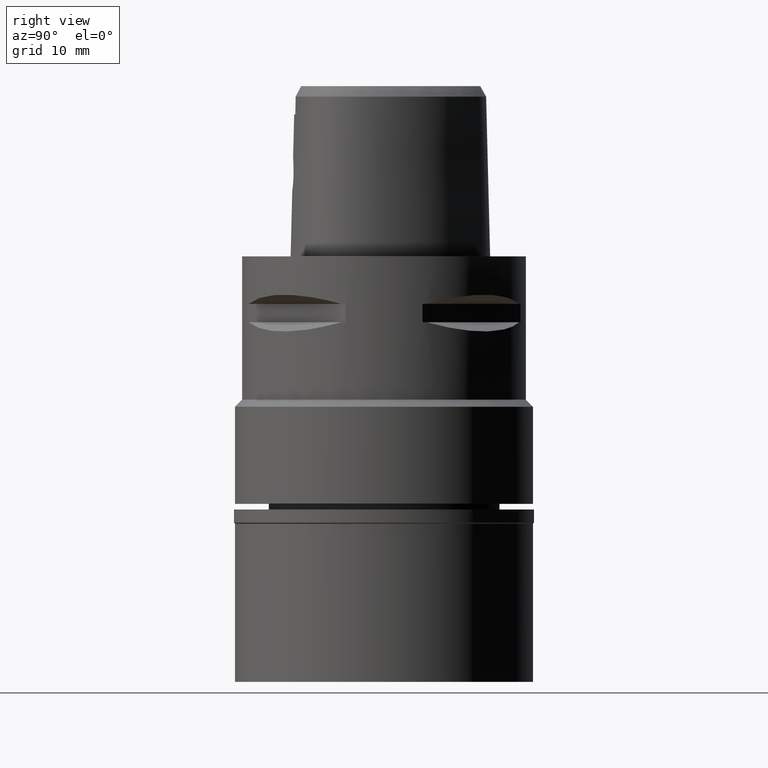
[diagram: clean part render]
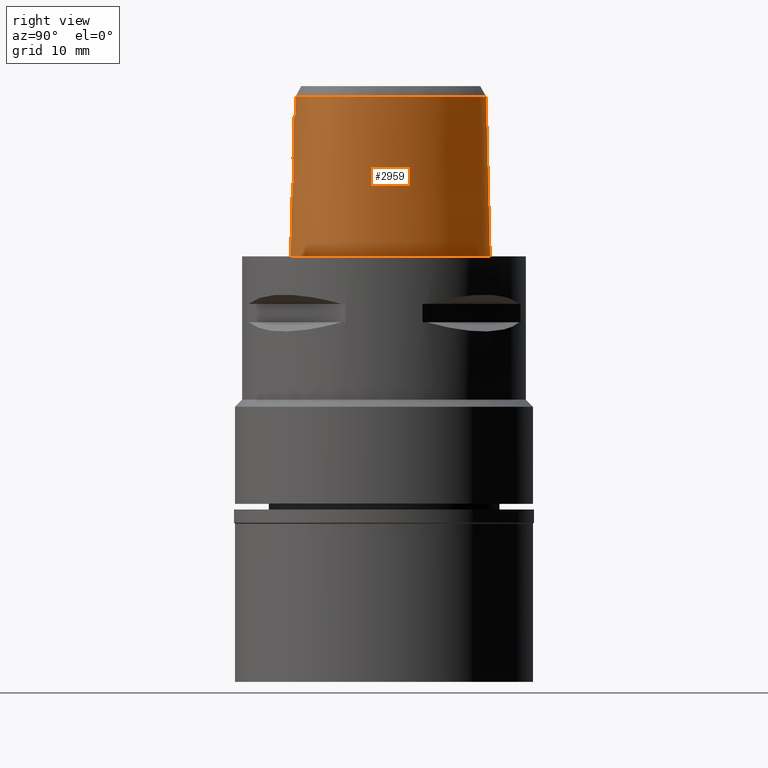
[diagram: same view with one face highlighted and labeled with its STEP entity id]
A machine part, right view. The second image highlights one B-rep face of the part: STEP entity #2959.
In plain terms, the highlighted face is a freeform B-spline surface patch.
Its self-contained STEP definition (entity closure, byte-faithful):
#7 = CARTESIAN_POINT ( 'NONE',  ( 11.17307783342999805, 6.450792882522000227, 15.16398131150999973 ) ) ;
#12 = CARTESIAN_POINT ( 'NONE',  ( 13.44334616193221166, -0.2854647381888774094, 22.52071729251855459 ) ) ;
#13 = CARTESIAN_POINT ( 'NONE',  ( 0.8463630567454494269, -12.91308736094397958, 9.361346884261209311 ) ) ;
#32 = CARTESIAN_POINT ( 'NONE',  ( 9.167104985026000463, -10.63410050911999960, 15.16398131150999973 ) ) ;
#54 = CARTESIAN_POINT ( 'NONE',  ( 13.17288116523999975, -6.685476025928000610, 7.356783012516999953 ) ) ;
#58 = CARTESIAN_POINT ( 'NONE',  ( 3.539803247036112044, 13.67924950645158333, 22.52071729251855459 ) ) ;
#74 = CARTESIAN_POINT ( 'NONE',  ( 12.53434584218000047, -8.180300366804999612, -0.4504152864805999745 ) ) ;
#76 = VECTOR ( 'NONE', #2680, 999.9999999999998863 ) ;
#98 = CARTESIAN_POINT ( 'NONE',  ( 3.702933653767999544, 14.02580468556999982, 7.356783012516999953 ) ) ;
#103 = CARTESIAN_POINT ( 'NONE',  ( 6.021703607729018692, 12.22251596526577089, 22.52071729251855459 ) ) ;
#120 = CARTESIAN_POINT ( 'NONE',  ( -0.4594072135883000563, 14.96036498340999898, -0.4504152864805999745 ) ) ;
#130 = EDGE_CURVE ( 'NONE', #3514, #4128, #686, .T. ) ;
#139 = CARTESIAN_POINT ( 'NONE',  ( -0.2984610428162000617, 14.77461943609000095, 7.356783012516999953 ) ) ;
#140 = CARTESIAN_POINT ( 'NONE',  ( 2.283291726754654860, -12.76615336163048120, 11.21397804785362240 ) ) ;
#168 = CARTESIAN_POINT ( 'NONE',  ( 0.3916487677517999644, 14.99059190172999934, -0.4504152864805999745 ) ) ;
#169 = CARTESIAN_POINT ( 'NONE',  ( 1.636146738088228192, -12.77533106805132768, 13.11651252606782059 ) ) ;
#193 = CARTESIAN_POINT ( 'NONE',  ( 0.2807011221681715019, -12.81802318095999382, 13.79999999999999361 ) ) ;
#214 = CARTESIAN_POINT ( 'NONE',  ( 1.634303316235000025, 14.85806844294999962, -0.4504152864805999745 ) ) ;
#219 = LINE ( 'NONE', #1959, #76 ) ;
#246 = FACE_OUTER_BOUND ( 'NONE', #3727, .T. ) ;
#255 = ORIENTED_EDGE ( 'NONE', *, *, #4236, .T. ) ;
#323 = CARTESIAN_POINT ( 'NONE',  ( 4.010857415567000039, -12.74186238831999951, 7.356783012516999953 ) ) ;
#345 = CARTESIAN_POINT ( 'NONE',  ( -0.5813887770821000167, -13.16870179204000024, -0.4504152864805999745 ) ) ;
#351 = CARTESIAN_POINT ( 'NONE',  ( 0.2902039408553566679, -12.93122636338095788, 9.213445385771416696 ) ) ;
#364 = CARTESIAN_POINT ( 'NONE',  ( 9.263792110822999248, -10.80433669501999994, 7.356783012516999953 ) ) ;
#369 = CARTESIAN_POINT ( 'NONE',  ( 0.5851900644935353890, -12.92362272837751824, 9.274365687024724636 ) ) ;
#387 = CARTESIAN_POINT ( 'NONE',  ( 13.22478982814000048, 2.964135533229000252, -0.4504152864805999745 ) ) ;
#393 = CARTESIAN_POINT ( 'NONE',  ( 8.737913805848126714, 9.598635895952188690, 22.52071729251855459 ) ) ;
#395 = CARTESIAN_POINT ( 'NONE',  ( 1.362992585860884009, -12.88053689248702227, 9.645493491597006752 ) ) ;
#413 = CARTESIAN_POINT ( 'NONE',  ( 13.79295339031999923, -2.621895082742000227, 15.16398131150999973 ) ) ;
#418 = CARTESIAN_POINT ( 'NONE',  ( 13.49620531830307790, -4.288887307215979661, 22.52071729251855459 ) ) ;
#431 = CARTESIAN_POINT ( 'NONE',  ( 11.00320924382000065, 6.352726099267000492, 22.97117961050999924 ) ) ;
#452 = CARTESIAN_POINT ( 'NONE',  ( 11.84499494171000045, -9.036543427711999144, -0.4504152864805999745 ) ) ;
#457 = CARTESIAN_POINT ( 'NONE',  ( 2.568703243657000090, -12.45023755174000080, 22.52071758139999957 ) ) ;
#480 = CARTESIAN_POINT ( 'NONE',  ( 4.736458210706247840, -12.13940339171398008, 22.52071729251855459 ) ) ;
#495 = CARTESIAN_POINT ( 'NONE',  ( -0.3063166190151000445, 14.96966817140000039, -0.4504152864805999745 ) ) ;
#496 = CARTESIAN_POINT ( 'NONE',  ( 1.607887411598816652, -12.85912041386504789, 9.855364509019530317 ) ) ;
#515 = CARTESIAN_POINT ( 'NONE',  ( 2.108316059774772100, -12.79932254745050457, 10.57985993986062923 ) ) ;
#542 = CARTESIAN_POINT ( 'NONE',  ( 0.3611446986978000262, 14.40383100754000090, 22.97117961050999924 ) ) ;
#544 = CARTESIAN_POINT ( 'NONE',  ( 2.093435941452272520, -12.80154818978905595, 10.54659307487395203 ) ) ;
#565 = CARTESIAN_POINT ( 'NONE',  ( 3.618945461097000216, 13.84737968352000159, 15.16398131150999973 ) ) ;
#586 = CARTESIAN_POINT ( 'NONE',  ( 1.617438359910112311, -12.85819787466014930, 9.864768670370724024 ) ) ;
#603 = ORIENTED_EDGE ( 'NONE', *, *, #3016, .T. ) ;
#628 = CARTESIAN_POINT ( 'NONE',  ( -5.004695375703999012E-14, -12.93301545397000041, 9.199999999999999289 ) ) ;
#632 = VERTEX_POINT ( 'NONE', #963 ) ;
#648 = CARTESIAN_POINT ( 'NONE',  ( -0.8566252957487999753, -12.76751126269999936, 15.16398131150999973 ) ) ;
#680 = ORIENTED_EDGE ( 'NONE', *, *, #3995, .T. ) ;
#686 = B_SPLINE_CURVE_WITH_KNOTS ( 'NONE', 3,
 ( #2984, #3386, #1647, #3436 ),
 .UNSPECIFIED., .F., .F.,
 ( 4, 4 ),
 ( 0.0000000000000000000, 1.000000000000000000 ),
 .UNSPECIFIED. ) ;
#715 = CARTESIAN_POINT ( 'NONE',  ( 13.67906226650999812, -4.314970315206999807, 15.16398131150999973 ) ) ;
#719 = CARTESIAN_POINT ( 'NONE',  ( 0.8599890503297806799, -12.91243217640208840, 9.366823301353724318 ) ) ;
#733 = CARTESIAN_POINT ( 'NONE',  ( 6.379661314013999274, 12.67792013684000096, -0.4504152864805999745 ) ) ;
#737 = CARTESIAN_POINT ( 'NONE',  ( 12.68166859856407491, 2.767886240359223038, 22.52071729251855459 ) ) ;
#738 = CARTESIAN_POINT ( 'NONE',  ( 1.107777221386162081, -12.89898952629147999, 9.478752576622724746 ) ) ;
#755 = CARTESIAN_POINT ( 'NONE',  ( 12.37623265583999910, -8.065311717194999730, 7.356783012516999953 ) ) ;
#780 = CARTESIAN_POINT ( 'NONE',  ( 14.06716929078999989, -4.370330522816000318, -0.4504152864805999745 ) ) ;
#799 = CARTESIAN_POINT ( 'NONE',  ( 12.81132623647999935, -7.396622651064999943, 7.356783012516999953 ) ) ;
#822 = CARTESIAN_POINT ( 'NONE',  ( 1.631981573327724533, 14.84698125559329362, -2.272717394054962758E-07 ) ) ;
#840 = CARTESIAN_POINT ( 'NONE',  ( -6.443097018925999211E-11, 14.40001989798000182, 22.52071729252999788 ) ) ;
#849 = CARTESIAN_POINT ( 'NONE',  ( 1.900109215921028660, -12.76256732845289932, 12.79816543668667883 ) ) ;
#870 = CARTESIAN_POINT ( 'NONE',  ( 1.513572624409000200, 14.28153440940000074, 22.97117961050999924 ) ) ;
#871 = CARTESIAN_POINT ( 'NONE',  ( 2.174655026129327151, -12.75097664368956707, 12.25065586503511206 ) ) ;
#895 = CARTESIAN_POINT ( 'NONE',  ( 0.9140504596458254305, -12.80412716134275897, 13.61058950019206293 ) ) ;
#945 = CARTESIAN_POINT ( 'NONE',  ( 1.542743282406445315, -12.86521460690468288, 9.794004530746757808 ) ) ;
#963 = CARTESIAN_POINT ( 'NONE',  ( -1.260417602886999942E-08, -12.66301535847000004, 19.99999996345999875 ) ) ;
#987 = VECTOR ( 'NONE', #3496, 1000.000000000000000 ) ;
#1022 = CARTESIAN_POINT ( 'NONE',  ( 0.0000000000000000000, -12.81802318095999915, 13.79999999999999893 ) ) ;
#1024 = CARTESIAN_POINT ( 'NONE',  ( 1.039641958832000057, -12.80928539657999998, 15.16398131150999973 ) ) ;
#1045 = CARTESIAN_POINT ( 'NONE',  ( -3.141300009387999579E-13, -13.16299999999999848, 3.164320657352000331E-13 ) ) ;
#1092 = CARTESIAN_POINT ( 'NONE',  ( 9.360479236618999721, -10.97457288092000027, -0.4504152864805999745 ) ) ;
#1113 = CARTESIAN_POINT ( 'NONE',  ( 13.18504580930000003, -5.572791057723000208, 22.97117961050999924 ) ) ;
#1138 = CARTESIAN_POINT ( 'NONE',  ( 12.06000628317000078, -7.835334417974999077, 22.97117961050999924 ) ) ;
#1162 = CARTESIAN_POINT ( 'NONE',  ( 10.57640489433000042, -9.688930259358999209, 15.16398131150999973 ) ) ;
#1163 = B_SPLINE_CURVE_WITH_KNOTS ( 'NONE', 3,
 ( #3416, #3085, #1625, #4460, #1228, #2279, #3037, #1911, #4530, #1303, #1953, #3387, #4052, #1603, #1274, #4149, #1977, #3715, #4483, #822, #2622, #1929 ),
 .UNSPECIFIED., .F., .F.,
 ( 4, 1, 1, 1, 1, 1, 1, 1, 1, 1, 1, 1, 1, 1, 1, 1, 1, 1, 1, 4 ),
 ( 0.0000000000000000000, 0.08333333333314001112, 0.1666666666663000063, 0.2083333333328000192, 0.2499999999994000077, 0.2916666666659999962, 0.3124999999992999489, 0.3333333333325000369, 0.3541666666659000207, 0.3749999999990999977, 0.4166666666657000140, 0.4583333333321999992, 0.4999999999987999599, 0.5833333333318999614, 0.6666666666650999939, 0.7499999999983000265, 0.8333333333314000280, 0.9166666666646000605, 0.9583333333311000457, 1.000000000000000000 ),
 .UNSPECIFIED. ) ;
#1180 = CARTESIAN_POINT ( 'NONE',  ( 13.56059769772000045, -5.684126895121000445, 7.356783012516999953 ) ) ;
#1203 = CARTESIAN_POINT ( 'NONE',  ( -0.4238406444181000432, 14.37596225131000161, 22.97117961050999924 ) ) ;
#1204 = CARTESIAN_POINT ( 'NONE',  ( 1.951316193504742280, -12.82105448170039352, 10.28025765297707039 ) ) ;
#1228 = CARTESIAN_POINT ( 'NONE',  ( 9.354901136022304442, -10.96475156745835910, -2.272717394054962758E-07 ) ) ;
#1229 = CARTESIAN_POINT ( 'NONE',  ( 2.129813370590990740, -12.75234797374023721, 12.36828487053672276 ) ) ;
#1252 = CARTESIAN_POINT ( 'NONE',  ( 2.192541761837270009, -12.75060236087973387, 12.19586171827744003 ) ) ;
#1274 = CARTESIAN_POINT ( 'NONE',  ( 13.21414037583564749, 2.960287501941765154, -2.272717394054962758E-07 ) ) ;
#1275 = CARTESIAN_POINT ( 'NONE',  ( 1.684262171804238095, -12.77302273728518323, 13.06656659278451293 ) ) ;
#1298 = EDGE_CURVE ( 'NONE', #1850, #3378, #219, .T. ) ;
#1303 = CARTESIAN_POINT ( 'NONE',  ( 13.34121471886259513, -6.760328908562915018, -2.272717394054962758E-07 ) ) ;
#1304 = CARTESIAN_POINT ( 'NONE',  ( 2.060625410339937513, -12.80630362430889235, 10.47760979850948004 ) ) ;
#1334 = B_SPLINE_CURVE_WITH_KNOTS ( 'NONE', 3,
 ( #3234, #4283, #351, #2477, #369, #3921, #2502, #2135, #13, #719, #1802, #1461, #3962, #738, #2178, #395, #3262, #1832, #945, #4531, #3038, #496, #586, #2025, #1604, #2353, #4098, #1204, #2726, #3438, #1304, #544, #515, #3086, #3063, #2623, #140, #3012, #4484, #3716, #2923, #1954, #3459, #4175, #4461, #1252, #871, #1978, #3817, #2373, #1229, #1501, #4379, #4075, #849, #2648, #1580, #3737, #1626, #1275, #3388, #2303, #169, #4506, #2702, #2674, #2280, #4123, #1930, #3417, #895, #2326, #3367, #3766, #193, #4150 ),
 .UNSPECIFIED., .F., .F.,
 ( 4, 2, 2, 1, 1, 1, 2, 2, 2, 2, 2, 1, 2, 2, 2, 2, 2, 2, 2, 2, 2, 2, 2, 2, 2, 1, 1, 1, 2, 2, 2, 2, 2, 1, 2, 2, 2, 2, 1, 1, 2, 2, 4 ),
 ( 0.0000000000000000000, 0.06249999999999270028, 0.09374999999998900879, 0.1093749999999871630, 0.1171874999999860806, 0.1210937499999854283, 0.1230468749999850953, 0.1249999999999847761, 0.1874999999999740485, 0.2187499999999686917, 0.2343749999999659994, 0.2421874999999646672, 0.2460937499999641953, 0.2499999999999637512, 0.2812499999999624745, 0.3124999999999613087, 0.3437499999999600875, 0.3593749999999594769, 0.3749999999999588662, 0.4374999999999584221, 0.4687499999999579225, 0.4843749999999579781, 0.4999999999999580336, 0.5624999999999583666, 0.5937499999999584777, 0.6093749999999585887, 0.6171874999999590328, 0.6210937499999589217, 0.6230468749999591438, 0.6249999999999592548, 0.6874999999999644729, 0.7187499999999671374, 0.7343749999999683586, 0.7421874999999690248, 0.7460937499999693578, 0.7499999999999696909, 0.8124999999999766853, 0.8437499999999802380, 0.8593749999999820144, 0.8671874999999827915, 0.8710937499999832356, 0.8749999999999835687, 1.000000000000000000 ),
 .UNSPECIFIED. ) ;
#1455 = CARTESIAN_POINT ( 'NONE',  ( 8.879307779120001243, 9.717869240021000721, 15.16398131150999973 ) ) ;
#1461 = CARTESIAN_POINT ( 'NONE',  ( 0.8747345760849615237, -12.91171422237640343, 9.372829819807567020 ) ) ;
#1478 = CARTESIAN_POINT ( 'NONE',  ( 12.21811946951000039, -7.950323067585000736, 15.16398131150999973 ) ) ;
#1479 = ORIENTED_EDGE ( 'NONE', *, *, #1298, .F. ) ;
#1485 = CARTESIAN_POINT ( 'NONE',  ( 0.8728598500693373063, -12.66303358566608495, 20.00000039696025311 ) ) ;
#1496 = ORIENTED_EDGE ( 'NONE', *, *, #3798, .F. ) ;
#1497 = CARTESIAN_POINT ( 'NONE',  ( 12.81560179714000114, -6.526604606469000203, 22.97117961050999924 ) ) ;
#1500 = CARTESIAN_POINT ( 'NONE',  ( 12.82590900890542152, -6.531187914406805461, 22.52071729251855459 ) ) ;
#1501 = CARTESIAN_POINT ( 'NONE',  ( 2.127531297605242067, -12.75242672595457094, 12.37385599951359794 ) ) ;
#1517 = CARTESIAN_POINT ( 'NONE',  ( 13.04019922838999967, 2.897436290594999964, 7.356783012516999953 ) ) ;
#1540 = CARTESIAN_POINT ( 'NONE',  ( 9.070417859229999991, -10.46386432322000104, 22.97117961050999924 ) ) ;
#1556 = CARTESIAN_POINT ( 'NONE',  ( -0.4356961674748000002, 14.57076316200999955, 15.16398131150999973 ) ) ;
#1578 = CARTESIAN_POINT ( 'NONE',  ( 1.553816188351000216, 14.47371242058999918, 15.16398131150999973 ) ) ;
#1580 = CARTESIAN_POINT ( 'NONE',  ( 1.777128131587683679, -12.76853727841398012, 12.96066480105604590 ) ) ;
#1603 = CARTESIAN_POINT ( 'NONE',  ( 14.00068088579136294, -0.1863062489993862481, -2.272717394054962758E-07 ) ) ;
#1604 = CARTESIAN_POINT ( 'NONE',  ( 1.727977423403882717, -12.84715031218464176, 9.980214359577360028 ) ) ;
#1625 = CARTESIAN_POINT ( 'NONE',  ( 4.043386008733997450, -12.92392500562347735, -2.272717394054962758E-07 ) ) ;
#1626 = CARTESIAN_POINT ( 'NONE',  ( 1.706514786401625461, -12.77195056588762334, 13.04216762706386668 ) ) ;
#1638 = EDGE_CURVE ( 'NONE', #2133, #2889, #4609, .T. ) ;
#1647 = CARTESIAN_POINT ( 'NONE',  ( 2.580559080356283008, -12.46988838676011468, 21.68047841357000038 ) ) ;
#1649 = CARTESIAN_POINT ( 'NONE',  ( 0.3814807447338000590, 14.79500493699999808, 7.356783012516999953 ) ) ;
#1683 = CARTESIAN_POINT ( 'NONE',  ( -0.8641029042386000336, -12.96254436573999946, 7.356783012516999953 ) ) ;
#1796 = CARTESIAN_POINT ( 'NONE',  ( 9.179411191957001392, 9.970937547325998906, -0.4504152864805999745 ) ) ;
#1802 = CARTESIAN_POINT ( 'NONE',  ( 0.8690674297323659481, -12.91199189238994016, 9.370505741516797826 ) ) ;
#1811 = CARTESIAN_POINT ( 'NONE',  ( 1.519331039290999918E-10, 14.96299999995999919, 3.170611921159000011E-13 ) ) ;
#1825 = CARTESIAN_POINT ( 'NONE',  ( 6.014684081915000036, 12.21358552102000061, 22.97117961050999924 ) ) ;
#1831 = CARTESIAN_POINT ( 'NONE',  ( 11.42690036411302756, -8.639965949823853464, 22.52071729251855459 ) ) ;
#1832 = CARTESIAN_POINT ( 'NONE',  ( 1.493711519928027975, -12.86960986600945134, 9.750504243696049400 ) ) ;
#1846 = CARTESIAN_POINT ( 'NONE',  ( 12.67101802888999984, 2.764037805325999742, 22.97117961050999924 ) ) ;
#1850 = VERTEX_POINT ( 'NONE', #840 ) ;
#1851 = CARTESIAN_POINT ( 'NONE',  ( 13.19588016803566788, -5.576003003767476152, 22.52071729251855459 ) ) ;
#1867 = CARTESIAN_POINT ( 'NONE',  ( 9.029359485539000474, 9.844403393673999858, 7.356783012516999953 ) ) ;
#1891 = CARTESIAN_POINT ( 'NONE',  ( 3.786921846438000117, 14.20422968761999982, -0.4504152864805999745 ) ) ;
#1911 = CARTESIAN_POINT ( 'NONE',  ( 12.52522393218623264, -8.173666409597958094, -2.272717394054962758E-07 ) ) ;
#1929 = CARTESIAN_POINT ( 'NONE',  ( 1.519331039290999918E-10, 14.96299999995999919, 3.170611921159000011E-13 ) ) ;
#1930 = CARTESIAN_POINT ( 'NONE',  ( 0.9948637763881081897, -12.80164440045601459, 13.57424493541911836 ) ) ;
#1953 = CARTESIAN_POINT ( 'NONE',  ( 13.73754041985511698, -5.736583204745405062, -2.272717394054962758E-07 ) ) ;
#1954 = CARTESIAN_POINT ( 'NONE',  ( 2.300118713600372899, -12.75356737073898117, 11.64310838016014138 ) ) ;
#1959 = CARTESIAN_POINT ( 'NONE',  ( -6.443097018925999211E-11, 14.40001989798000182, 22.52071729252999788 ) ) ;
#1977 = CARTESIAN_POINT ( 'NONE',  ( 9.170754367108662208, 9.963637503683397512, -2.272717394054962758E-07 ) ) ;
#1978 = CARTESIAN_POINT ( 'NONE',  ( 2.151238930190784160, -12.75164808129621186, 12.31414270909194819 ) ) ;
#2025 = CARTESIAN_POINT ( 'NONE',  ( 1.677338744211869681, -12.85235830105379584, 9.924503536723731756 ) ) ;
#2062 = CARTESIAN_POINT ( 'NONE',  ( -0.5714334880861999810, -12.77845907769000000, 15.16398131150999973 ) ) ;
#2079 = ORIENTED_EDGE ( 'NONE', *, *, #130, .F. ) ;
#2133 = VERTEX_POINT ( 'NONE', #3969 ) ;
#2135 = CARTESIAN_POINT ( 'NONE',  ( 0.8145125421232730645, -12.91457943454070012, 9.348898823453641427 ) ) ;
#2149 = CARTESIAN_POINT ( 'NONE',  ( 3.976337276947000010, -12.54865308613999986, 15.16398131150999973 ) ) ;
#2169 = B_SPLINE_CURVE_WITH_KNOTS ( 'NONE', 3,
 ( #2200, #3637, #4057, #58, #103, #393, #2541, #737, #12, #2948, #418, #1851, #1500, #2921, #4403, #1831, #2967, #4378, #3261, #480, #2569, #457 ),
 .UNSPECIFIED., .F., .F.,
 ( 4, 1, 1, 1, 1, 1, 1, 1, 1, 1, 1, 1, 1, 1, 1, 1, 1, 1, 1, 4 ),
 ( 0.0000000000000000000, 0.04407253041122558002, 0.08814506081991262121, 0.1762901216374982982, 0.2644351824549781571, 0.3525802432725638758, 0.4407253040901495389, 0.5288703649076293978, 0.5729428953164222849, 0.6170154257251092567, 0.6610879561339020327, 0.6831242213381927275, 0.7051604865426949198, 0.7271967517469856146, 0.7492330169513820026, 0.7933055473601747787, 0.8373780777689675547, 0.8814506081776546376, 0.9695956689951980012, 1.000000000000000000 ),
 .UNSPECIFIED. ) ;
#2171 = CARTESIAN_POINT ( 'NONE',  ( 10.69740339990999978, -9.843145481643999162, 7.356783012516999953 ) ) ;
#2178 = CARTESIAN_POINT ( 'NONE',  ( 1.298081316806007246, -12.88549019285320263, 9.599832171980064999 ) ) ;
#2194 = CARTESIAN_POINT ( 'NONE',  ( 11.70289714727999986, -8.901758649462999884, 7.356783012516999953 ) ) ;
#2200 = CARTESIAN_POINT ( 'NONE',  ( -6.443097018925999211E-11, 14.40001989798000182, 22.52071729252999788 ) ) ;
#2201 = CARTESIAN_POINT ( 'NONE',  ( 2.603594716343999860, -12.50959097760000027, 20.00000007790999845 ) ) ;
#2217 = CARTESIAN_POINT ( 'NONE',  ( 14.18449853747000056, -2.619126383680999925, -0.4504152864805999745 ) ) ;
#2236 = CARTESIAN_POINT ( 'NONE',  ( 12.99424148118999867, -6.606040316197999474, 15.16398131150999973 ) ) ;
#2279 = CARTESIAN_POINT ( 'NONE',  ( 10.81142122600753552, -9.988463676364327526, -2.272717394054962758E-07 ) ) ;
#2280 = CARTESIAN_POINT ( 'NONE',  ( 1.142660623815330512, -12.79660889249700695, 13.49746603130104639 ) ) ;
#2302 = CARTESIAN_POINT ( 'NONE',  ( -0.2906054666173000234, 14.57957070079000061, 15.16398131150999973 ) ) ;
#2303 = CARTESIAN_POINT ( 'NONE',  ( 1.645449367503719840, -12.77488553661845216, 13.10705414946581371 ) ) ;
#2326 = CARTESIAN_POINT ( 'NONE',  ( 0.8979950357798029970, -12.80460331550703934, 13.61747047129695254 ) ) ;
#2353 = CARTESIAN_POINT ( 'NONE',  ( 1.823556130523415586, -12.83669982089713990, 10.09632717221609965 ) ) ;
#2373 = CARTESIAN_POINT ( 'NONE',  ( 2.133463040824036927, -12.75222410475732460, 12.35927822234070028 ) ) ;
#2438 = CARTESIAN_POINT ( 'NONE',  ( 2.603594716343999860, -12.50959097760000027, 20.00000007790999845 ) ) ;
#2443 = B_SPLINE_CURVE_WITH_KNOTS ( 'NONE', 3,
 ( #4225, #2825, #3954, #2803 ),
 .UNSPECIFIED., .F., .F.,
 ( 4, 4 ),
 ( 0.0000000000000000000, 1.000000000000000000 ),
 .UNSPECIFIED. ) ;
#2451 = CARTESIAN_POINT ( 'NONE',  ( 4.045377554187999714, -12.93507169051000005, -0.4504152864805999745 ) ) ;
#2477 = CARTESIAN_POINT ( 'NONE',  ( 0.5113403789473719430, -12.92585909161382141, 9.256304699910778311 ) ) ;
#2502 = CARTESIAN_POINT ( 'NONE',  ( 0.7506047745049365671, -12.91741682039675787, 9.325319817445201664 ) ) ;
#2517 = CARTESIAN_POINT ( 'NONE',  ( 11.41870155842000045, -8.632189092964999588, 22.97117961050999924 ) ) ;
#2537 = CARTESIAN_POINT ( 'NONE',  ( 13.35152084928000171, -6.764911735657999969, -0.4504152864805999745 ) ) ;
#2541 = CARTESIAN_POINT ( 'NONE',  ( 11.01301037806806526, 6.358384389067156306, 22.52071729251855459 ) ) ;
#2564 = CARTESIAN_POINT ( 'NONE',  ( 12.64198528792000076, -7.298853608572000162, 15.16398131150999973 ) ) ;
#2569 = CARTESIAN_POINT ( 'NONE',  ( 3.014424016408716156, -12.39773933397889394, 22.52071729251855459 ) ) ;
#2585 = CARTESIAN_POINT ( 'NONE',  ( 11.56079935284999927, -8.766973871213998848, 15.16398131150999973 ) ) ;
#2600 = CARTESIAN_POINT ( 'NONE',  ( 13.43219828036999886, -0.2874481191734999941, 22.97117961050999924 ) ) ;
#2622 = CARTESIAN_POINT ( 'NONE',  ( 0.5439938577494491945, 14.96300000568862920, -2.272717394054962758E-07 ) ) ;
#2623 = CARTESIAN_POINT ( 'NONE',  ( 2.273024517897147767, -12.76906917250001783, 11.14078746300479850 ) ) ;
#2647 = CARTESIAN_POINT ( 'NONE',  ( -0.4475516905315999883, 14.76556407271000104, 7.356783012516999953 ) ) ;
#2648 = CARTESIAN_POINT ( 'NONE',  ( 1.854517083046229420, -12.76478398344009157, 12.86296390898198361 ) ) ;
#2674 = CARTESIAN_POINT ( 'NONE',  ( 1.209086969166249803, -12.79412523546898939, 13.45817784097335235 ) ) ;
#2680 = DIRECTION ( 'NONE',  ( 9.604334457489188935E-12, 0.02499051293194049644, -0.9996876883624198351 ) ) ;
#2701 = CARTESIAN_POINT ( 'NONE',  ( 0.3713127217157999871, 14.59941797227000038, 15.16398131150999973 ) ) ;
#2702 = CARTESIAN_POINT ( 'NONE',  ( 1.408052784049092399, -12.78604258398031668, 13.32559425417543153 ) ) ;
#2726 = CARTESIAN_POINT ( 'NONE',  ( 1.989864840047335992, -12.81604061847015963, 10.34408982122400467 ) ) ;
#2803 = CARTESIAN_POINT ( 'NONE',  ( 0.0000000000000000000, -12.81802318095999915, 13.79999999999999893 ) ) ;
#2825 = CARTESIAN_POINT ( 'NONE',  ( -4.211334664771787665E-09, -12.71469678372505463, 17.93333361273060333 ) ) ;
#2856 = ORIENTED_EDGE ( 'NONE', *, *, #1638, .T. ) ;
#2871 = CARTESIAN_POINT ( 'NONE',  ( 7.165542350678999917, -12.04243711844999964, -0.4504152864805999745 ) ) ;
#2889 = VERTEX_POINT ( 'NONE', #1045 ) ;
#2898 = CARTESIAN_POINT ( 'NONE',  ( 13.74837364194000067, -5.739794813818999586, -0.4504152864805999745 ) ) ;
#2916 = CARTESIAN_POINT ( 'NONE',  ( 7.098705620310000519, -11.85792498198000011, 7.356783012516999953 ) ) ;
#2921 = CARTESIAN_POINT ( 'NONE',  ( 12.48241502959967164, -7.206725676733874764, 22.52071729251855459 ) ) ;
#2923 = CARTESIAN_POINT ( 'NONE',  ( 2.299969345384956565, -12.75813322093608448, 11.46185367829120416 ) ) ;
#2944 = CARTESIAN_POINT ( 'NONE',  ( 6.136343159281000048, 12.36836372630000191, 15.16398131150999973 ) ) ;
#2948 = CARTESIAN_POINT ( 'NONE',  ( 13.60847656765987246, -2.623199557614415589, 22.52071729251855459 ) ) ;
#2959 = ADVANCED_FACE ( 'NONE', ( #246 ), #4575, .T. ) ;
#2965 = CARTESIAN_POINT ( 'NONE',  ( 13.59718081674999901, -2.623279432273000200, 22.97117961050999924 ) ) ;
#2967 = CARTESIAN_POINT ( 'NONE',  ( 10.46238780067392504, -9.543612998139185066, 22.52071729251855459 ) ) ;
#2984 = CARTESIAN_POINT ( 'NONE',  ( 2.603594716343999860, -12.50959097760000027, 20.00000007790999845 ) ) ;
#3012 = CARTESIAN_POINT ( 'NONE',  ( 2.293385494860433305, -12.76236463091424866, 11.32198205537717683 ) ) ;
#3016 = EDGE_CURVE ( 'NONE', #2889, #3378, #1163, .T. ) ;
#3037 = CARTESIAN_POINT ( 'NONE',  ( 11.83679699616788916, -9.028767386736673117, -2.272717394054962758E-07 ) ) ;
#3038 = CARTESIAN_POINT ( 'NONE',  ( 1.591641127633351305, -12.86067053571207808, 9.839636682109446753 ) ) ;
#3063 = CARTESIAN_POINT ( 'NONE',  ( 2.230462555841228767, -12.77898657628475121, 10.91885181771379365 ) ) ;
#3085 = CARTESIAN_POINT ( 'NONE',  ( 1.347795336245220632, -13.16300000568423201, -2.272717394054963023E-07 ) ) ;
#3086 = CARTESIAN_POINT ( 'NONE',  ( 2.186354490194189371, -12.78715814037609633, 10.76765892232664434 ) ) ;
#3115 = CARTESIAN_POINT ( 'NONE',  ( -0.8491476872590000280, -12.57247815965000015, 22.97117961050999924 ) ) ;
#3137 = CARTESIAN_POINT ( 'NONE',  ( -0.8715805127283999809, -13.15757746879000045, -0.4504152864805999745 ) ) ;
#3228 = CARTESIAN_POINT ( 'NONE',  ( 3.941817138325999448, -12.35544378394999931, 22.97117961050999924 ) ) ;
#3234 = CARTESIAN_POINT ( 'NONE',  ( -5.004695375703999012E-14, -12.93301545397000041, 9.199999999999999289 ) ) ;
#3254 = CARTESIAN_POINT ( 'NONE',  ( 7.031868889942000322, -11.67341284551000058, 15.16398131150999973 ) ) ;
#3261 = CARTESIAN_POINT ( 'NONE',  ( 6.968888527419176526, -11.49954675151371042, 22.52071729251855459 ) ) ;
#3262 = CARTESIAN_POINT ( 'NONE',  ( 1.460959802882076497, -12.87242665810761189, 9.723111638546763302 ) ) ;
#3277 = CARTESIAN_POINT ( 'NONE',  ( 11.51281501266000085, 6.646926449032999784, -0.4504152864805999745 ) ) ;
#3298 = CARTESIAN_POINT ( 'NONE',  ( 8.729256072702000324, 9.591335086369001672, 22.97117961050999924 ) ) ;
#3326 = CARTESIAN_POINT ( 'NONE',  ( 12.98066718503000061, -7.494391693557000522, -0.4504152864805999745 ) ) ;
#3346 = CARTESIAN_POINT ( 'NONE',  ( -0.2827498904184000406, 14.38452196548000117, 22.97117961050999924 ) ) ;
#3367 = CARTESIAN_POINT ( 'NONE',  ( 0.8913097515803488635, -12.80479973338802147, 13.62029918993116517 ) ) ;
#3378 = VERTEX_POINT ( 'NONE', #1811 ) ;
#3386 = CARTESIAN_POINT ( 'NONE',  ( 2.592189410844740749, -12.48967527515265097, 20.84023924574000119 ) ) ;
#3387 = CARTESIAN_POINT ( 'NONE',  ( 14.05597390150784953, -4.368733594556109878, -2.272717394054962758E-07 ) ) ;
#3388 = CARTESIAN_POINT ( 'NONE',  ( 1.661097454702009868, -12.77413506297898316, 13.09087457277944644 ) ) ;
#3402 = B_SPLINE_CURVE_WITH_KNOTS ( 'NONE', 3,
 ( #2201, #3943, #1485, #4355 ),
 .UNSPECIFIED., .F., .F.,
 ( 4, 4 ),
 ( 0.0000000000000000000, 1.000000000000000000 ),
 .UNSPECIFIED. ) ;
#3416 = CARTESIAN_POINT ( 'NONE',  ( -3.141300009387999579E-13, -13.16299999999999848, 3.164320657352000331E-13 ) ) ;
#3417 = CARTESIAN_POINT ( 'NONE',  ( 0.9381876972277067850, -12.80340306009001239, 13.60008248099543060 ) ) ;
#3436 = CARTESIAN_POINT ( 'NONE',  ( 2.568703243657000090, -12.45023755174000080, 22.52071758139999957 ) ) ;
#3438 = CARTESIAN_POINT ( 'NONE',  ( 2.043463385603179638, -12.80871364515760469, 10.44374245684926272 ) ) ;
#3459 = CARTESIAN_POINT ( 'NONE',  ( 2.286485425364321866, -12.75134569601223333, 11.79083204284531483 ) ) ;
#3491 = CARTESIAN_POINT ( 'NONE',  ( 1.048704670423000085, -13.00466323799999913, 7.356783012516999953 ) ) ;
#3496 = DIRECTION ( 'NONE',  ( -2.869571423615890555E-14, -0.02499051295424905769, -0.9996876883618621701 ) ) ;
#3514 = VERTEX_POINT ( 'NONE', #2438 ) ;
#3515 = CARTESIAN_POINT ( 'NONE',  ( -0.5664558435883000342, -12.58333772052000121, 22.97117961050999924 ) ) ;
#3583 = CARTESIAN_POINT ( 'NONE',  ( 12.85560862864000065, 2.830737047960000030, 15.16398131150999973 ) ) ;
#3605 = CARTESIAN_POINT ( 'NONE',  ( 13.87311577864999990, -4.342650419011000018, 7.356783012516999953 ) ) ;
#3631 = CARTESIAN_POINT ( 'NONE',  ( 13.98872596388999945, -2.620510733212000343, 7.356783012516999953 ) ) ;
#3637 = CARTESIAN_POINT ( 'NONE',  ( 0.5039711947955414217, 14.40001989752541789, 22.52071729251855459 ) ) ;
#3650 = CARTESIAN_POINT ( 'NONE',  ( 10.81840190550000003, -9.997360703929999204, -0.4504152864805999745 ) ) ;
#3667 = CARTESIAN_POINT ( 'NONE',  ( 10.45540638875000106, -9.534715037073000943, 22.97117961050999924 ) ) ;
#3715 = CARTESIAN_POINT ( 'NONE',  ( 6.372642524630598437, 12.66899062950317933, -2.272717394054962758E-07 ) ) ;
#3716 = CARTESIAN_POINT ( 'NONE',  ( 2.299158587324114489, -12.75906338818807129, 11.42842241194412622 ) ) ;
#3724 = EDGE_CURVE ( 'NONE', #3514, #632, #3402, .T. ) ;
#3727 = EDGE_LOOP ( 'NONE', ( #1479, #680, #2079, #4110, #255, #1496, #2856, #603 ) ) ;
#3737 = CARTESIAN_POINT ( 'NONE',  ( 1.749832844618249839, -12.76985976215412499, 12.99331170241846145 ) ) ;
#3765 = CARTESIAN_POINT ( 'NONE',  ( 1.594059752293000010, 14.66589043177000029, 7.356783012516999953 ) ) ;
#3766 = CARTESIAN_POINT ( 'NONE',  ( 0.5839158947253625387, -12.81370532052833155, 13.74793500504249799 ) ) ;
#3798 = EDGE_CURVE ( 'NONE', #2133, #4309, #1334, .T. ) ;
#3817 = CARTESIAN_POINT ( 'NONE',  ( 2.138891804680091546, -12.75204249368166742, 12.34575813156822299 ) ) ;
#3921 = CARTESIAN_POINT ( 'NONE',  ( 0.6955382434997618990, -12.91959727455216722, 9.307353099904595695 ) ) ;
#3943 = CARTESIAN_POINT ( 'NONE',  ( 1.745775296001650378, -12.61172358491315038, 20.00000039696025311 ) ) ;
#3954 = CARTESIAN_POINT ( 'NONE',  ( -4.221062370208398137E-09, -12.76635998233967229, 15.86666680636521498 ) ) ;
#3957 = CARTESIAN_POINT ( 'NONE',  ( 13.81861782533000138, -0.2186980904542999982, 7.356783012516999953 ) ) ;
#3962 = CARTESIAN_POINT ( 'NONE',  ( 0.9870234129230367470, -12.90617499170331506, 9.419215489491547189 ) ) ;
#3969 = CARTESIAN_POINT ( 'NONE',  ( -5.004695375703999012E-14, -12.93301545397000041, 9.199999999999999289 ) ) ;
#3984 = CARTESIAN_POINT ( 'NONE',  ( 13.48500875436999813, -4.287290211402000395, 22.97117961050999924 ) ) ;
#3995 = EDGE_CURVE ( 'NONE', #1850, #4128, #2169, .T. ) ;
#4015 = CARTESIAN_POINT ( 'NONE',  ( 12.47264433936000039, -7.201084566079000382, 22.97117961050999924 ) ) ;
#4036 = CARTESIAN_POINT ( 'NONE',  ( 11.34294642304999989, 6.548859665777999162, 7.356783012516999953 ) ) ;
#4052 = CARTESIAN_POINT ( 'NONE',  ( 14.17320397161636336, -2.619206249959795674, -2.272717394054962758E-07 ) ) ;
#4057 = CARTESIAN_POINT ( 'NONE',  ( 1.515894610912434048, 14.29262276005762011, 22.52071729251855459 ) ) ;
#4075 = CARTESIAN_POINT ( 'NONE',  ( 2.021153119196465120, -12.75677398847753352, 12.60794142557543296 ) ) ;
#4097 = CARTESIAN_POINT ( 'NONE',  ( 3.534957268426999644, 13.66895468147999892, 22.97117961050999924 ) ) ;
#4098 = CARTESIAN_POINT ( 'NONE',  ( 1.869424949256399460, -12.83134063687127302, 10.15811452081313782 ) ) ;
#4110 = ORIENTED_EDGE ( 'NONE', *, *, #3724, .T. ) ;
#4123 = CARTESIAN_POINT ( 'NONE',  ( 1.043973006291829098, -12.80001853783673305, 13.54975762566916941 ) ) ;
#4128 = VERTEX_POINT ( 'NONE', #4491 ) ;
#4149 = CARTESIAN_POINT ( 'NONE',  ( 11.50301490666591597, 6.641268752853833668, -2.272717394054962758E-07 ) ) ;
#4150 = CARTESIAN_POINT ( 'NONE',  ( 0.0000000000000000000, -12.81802318095999915, 13.79999999999999893 ) ) ;
#4175 = CARTESIAN_POINT ( 'NONE',  ( 2.243503838788325044, -12.75015969206853583, 12.01219160938978980 ) ) ;
#4225 = CARTESIAN_POINT ( 'NONE',  ( -1.260417602886999942E-08, -12.66301535847000004, 19.99999996345999875 ) ) ;
#4236 = EDGE_CURVE ( 'NONE', #632, #4309, #2443, .T. ) ;
#4283 = CARTESIAN_POINT ( 'NONE',  ( 0.1433742188150442520, -12.93301545397000396, 9.199999999999999289 ) ) ;
#4309 = VERTEX_POINT ( 'NONE', #1022 ) ;
#4326 = CARTESIAN_POINT ( 'NONE',  ( 6.258002236648000149, 12.52314193157000055, 7.356783012516999953 ) ) ;
#4348 = CARTESIAN_POINT ( 'NONE',  ( 13.37282175350999935, -5.628458976422000326, 15.16398131150999973 ) ) ;
#4355 = CARTESIAN_POINT ( 'NONE',  ( -1.260417602886999942E-08, -12.66301535847000004, 19.99999996345999875 ) ) ;
#4372 = CARTESIAN_POINT ( 'NONE',  ( 6.965032159573000037, -11.48890070903999927, 22.97117961050999924 ) ) ;
#4378 = CARTESIAN_POINT ( 'NONE',  ( 9.075996545096296941, -10.47368666716076469, 22.52071729251855459 ) ) ;
#4379 = CARTESIAN_POINT ( 'NONE',  ( 2.080890816678778954, -12.75405392847556918, 12.48689062668485761 ) ) ;
#4397 = CARTESIAN_POINT ( 'NONE',  ( 13.62540805284999834, -0.2530731048138999961, 15.16398131150999973 ) ) ;
#4403 = CARTESIAN_POINT ( 'NONE',  ( 12.06912915025956501, -7.841969071235013189, 22.52071729251855459 ) ) ;
#4416 = CARTESIAN_POINT ( 'NONE',  ( 14.01182759780999909, -0.1843230760947000002, -0.4504152864805999745 ) ) ;
#4460 = CARTESIAN_POINT ( 'NONE',  ( 7.161686387411058341, -12.03179219287105539, -2.272717394054962758E-07 ) ) ;
#4461 = CARTESIAN_POINT ( 'NONE',  ( 2.225429295879720382, -12.75012210877837227, 12.08593180703759096 ) ) ;
#4483 = CARTESIAN_POINT ( 'NONE',  ( 3.782076376228901804, 14.19393594269577896, -2.272717394054962758E-07 ) ) ;
#4484 = CARTESIAN_POINT ( 'NONE',  ( 2.295866016296753465, -12.76119921827351078, 11.35768768151777230 ) ) ;
#4491 = CARTESIAN_POINT ( 'NONE',  ( 2.568703243657000090, -12.45023755174000080, 22.52071758139999957 ) ) ;
#4506 = CARTESIAN_POINT ( 'NONE',  ( 1.523028941585173879, -12.78074262657536586, 13.23006938842581270 ) ) ;
#4530 = CARTESIAN_POINT ( 'NONE',  ( 12.97089751985094175, -7.488751174720877479, -2.272717394054962758E-07 ) ) ;
#4531 = CARTESIAN_POINT ( 'NONE',  ( 1.567234804650387892, -12.86297445961291075, 9.816357320212372173 ) ) ;
#4558 = CARTESIAN_POINT ( 'NONE',  ( -0.5764111325841000388, -12.97358043485999879, 7.356783012516999953 ) ) ;
#4575 = B_SPLINE_SURFACE_WITH_KNOTS ( 'NONE', 3, 3, ( 
 ( #3137, #1683, #648, #3115 ),
 ( #345, #4558, #2062, #3515 ),
 ( #4649, #3491, #1024, #4581 ),
 ( #2451, #323, #2149, #3228 ),
 ( #2871, #2916, #3254, #4372 ),
 ( #1092, #364, #32, #1540 ),
 ( #3650, #2171, #1162, #3667 ),
 ( #452, #2194, #2585, #2517 ),
 ( #74, #755, #1478, #1138 ),
 ( #3326, #799, #2564, #4015 ),
 ( #2537, #54, #2236, #1497 ),
 ( #2898, #1180, #4348, #1113 ),
 ( #780, #3605, #715, #3984 ),
 ( #2217, #3631, #413, #2965 ),
 ( #4416, #3957, #4397, #2600 ),
 ( #387, #1517, #3583, #1846 ),
 ( #3277, #4036, #7, #431 ),
 ( #1796, #1867, #1455, #3298 ),
 ( #733, #4326, #2944, #1825 ),
 ( #1891, #98, #565, #4097 ),
 ( #214, #3765, #1578, #870 ),
 ( #168, #1649, #2701, #542 ),
 ( #495, #139, #2302, #3346 ),
 ( #120, #2647, #1556, #1203 ) ),
 .UNSPECIFIED., .F., .F., .F.,
 ( 4, 1, 1, 1, 1, 1, 1, 1, 1, 1, 1, 1, 1, 1, 1, 1, 1, 1, 1, 1, 1, 4 ),
 ( 4, 4 ),
 ( -0.01796457239586999807, 0.0000000000000000000, 0.08333333333314001112, 0.1666666666663000063, 0.2083333333328000192, 0.2499999999994000077, 0.2916666666659999962, 0.3124999999992999489, 0.3333333333325000369, 0.3541666666659000207, 0.3749999999990999977, 0.4166666666657000140, 0.4583333333321999992, 0.4999999999987999599, 0.5833333333318999614, 0.6666666666650999939, 0.7499999999983000265, 0.8333333333314000280, 0.9166666666646000605, 0.9583333333311000457, 1.000000000000000000, 1.011713651438000072 ),
 ( -3.583445859836999667E-08, 1.000001827556999956 ),
 .UNSPECIFIED. ) ;
#4581 = CARTESIAN_POINT ( 'NONE',  ( 1.030579247242000118, -12.61390755516999995, 22.97117961050999924 ) ) ;
#4609 = LINE ( 'NONE', #628, #987 ) ;
#4649 = CARTESIAN_POINT ( 'NONE',  ( 1.057767382013000024, -13.20004107942000005, -0.4504152864805999745 ) ) ;